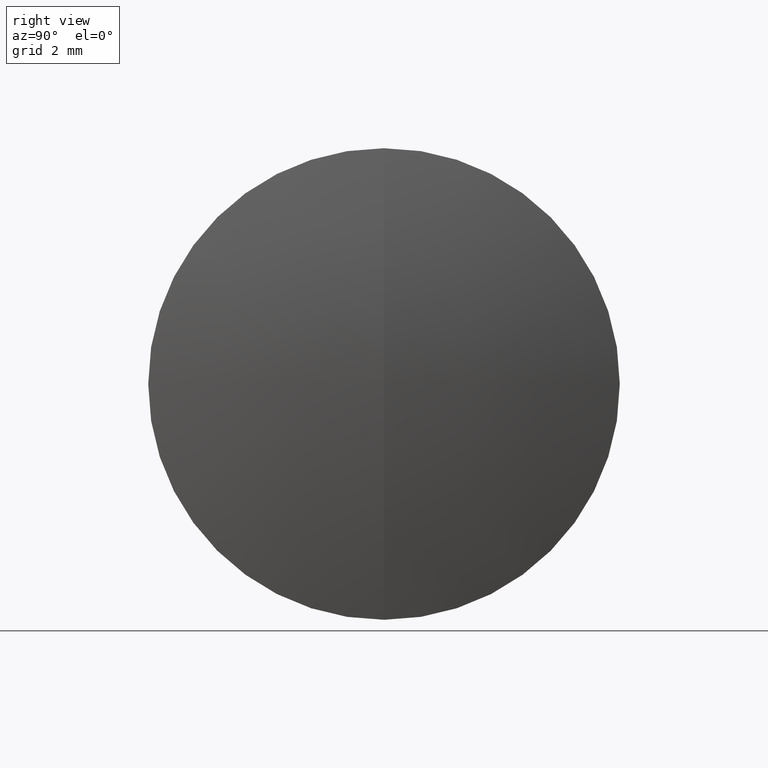
[diagram: clean part render]
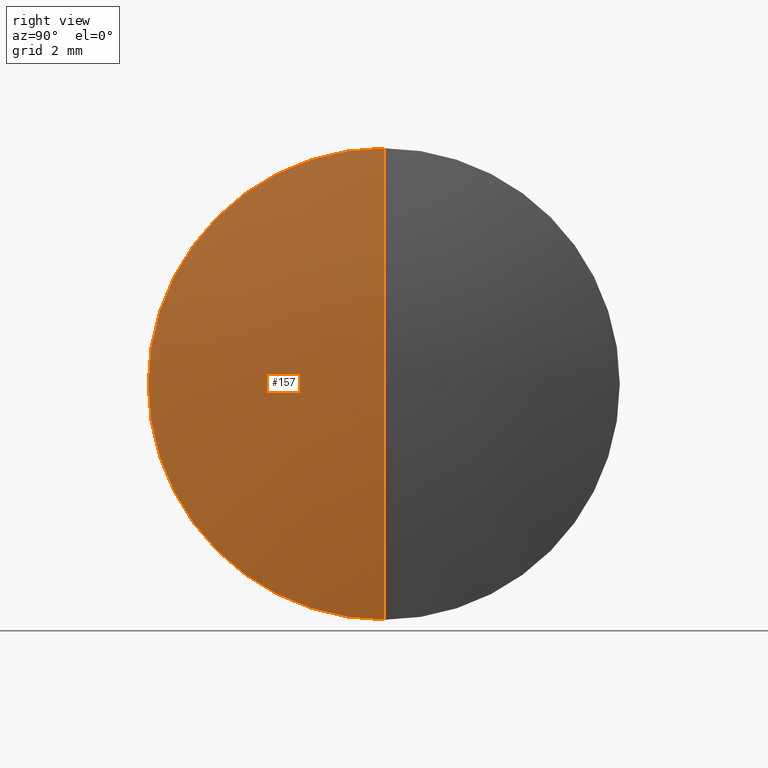
[diagram: same view with one face highlighted and labeled with its STEP entity id]
A machine part, right view. The second image highlights one B-rep face of the part: STEP entity #157.
In plain terms, the highlighted spherical surface has radius 23.586 mm.
Its self-contained STEP definition (entity closure, byte-faithful):
#15 = EDGE_LOOP ( 'NONE', ( #143, #118, #308 ) ) ;
#23 = CARTESIAN_POINT ( 'NONE',  ( -18.99342932123091600, 0.0000000000000000000, 0.0000000000000000000 ) ) ;
#44 = DIRECTION ( 'NONE',  ( 0.0000000000000000000, -1.224646799147353200E-016, 1.000000000000000000 ) ) ;
#81 = CARTESIAN_POINT ( 'NONE',  ( 4.592570678769083000, 0.0000000000000000000, 1.444225970234473700E-015 ) ) ;
#99 = DIRECTION ( 'NONE',  ( -1.000000000000000000, -0.0000000000000000000, -0.0000000000000000000 ) ) ;
#115 = CIRCLE ( 'NONE', #198, 23.58599999999999900 ) ;
#117 = CIRCLE ( 'NONE', #254, 23.58599999999999900 ) ;
#118 = ORIENTED_EDGE ( 'NONE', *, *, #345, .T. ) ;
#123 = SPHERICAL_SURFACE ( 'NONE', #281, 23.58599999999999900 ) ;
#127 = CARTESIAN_POINT ( 'NONE',  ( 4.056503346783539000, 0.0000000000000000000, 4.999999999999997300 ) ) ;
#143 = ORIENTED_EDGE ( 'NONE', *, *, #237, .F. ) ;
#148 = CARTESIAN_POINT ( 'NONE',  ( 4.056503346783539000, 6.123233995736764300E-016, -4.999999999999997300 ) ) ;
#152 = CARTESIAN_POINT ( 'NONE',  ( -18.99342932123091600, 0.0000000000000000000, 0.0000000000000000000 ) ) ;
#157 = ADVANCED_FACE ( 'NONE', ( #333 ), #123, .T. ) ;
#158 = CARTESIAN_POINT ( 'NONE',  ( -18.99342932123091600, 0.0000000000000000000, 0.0000000000000000000 ) ) ;
#179 = DIRECTION ( 'NONE',  ( 0.0000000000000000000, 0.0000000000000000000, -1.000000000000000000 ) ) ;
#197 = DIRECTION ( 'NONE',  ( -0.0000000000000000000, 1.000000000000000000, 1.224646799147353200E-016 ) ) ;
#198 = AXIS2_PLACEMENT_3D ( 'NONE', #152, #347, #179 ) ;
#209 = DIRECTION ( 'NONE',  ( 0.0000000000000000000, 0.0000000000000000000, 1.000000000000000000 ) ) ;
#229 = VERTEX_POINT ( 'NONE', #81 ) ;
#231 = AXIS2_PLACEMENT_3D ( 'NONE', #260, #99, #288 ) ;
#237 = EDGE_CURVE ( 'NONE', #229, #310, #117, .T. ) ;
#254 = AXIS2_PLACEMENT_3D ( 'NONE', #23, #197, #44 ) ;
#260 = CARTESIAN_POINT ( 'NONE',  ( 4.056503346783539000, 0.0000000000000000000, 0.0000000000000000000 ) ) ;
#273 = DIRECTION ( 'NONE',  ( 0.0000000000000000000, 1.000000000000000000, 0.0000000000000000000 ) ) ;
#277 = EDGE_CURVE ( 'NONE', #310, #340, #335, .T. ) ;
#281 = AXIS2_PLACEMENT_3D ( 'NONE', #158, #273, #209 ) ;
#288 = DIRECTION ( 'NONE',  ( 0.0000000000000000000, 0.0000000000000000000, 1.000000000000000000 ) ) ;
#308 = ORIENTED_EDGE ( 'NONE', *, *, #277, .F. ) ;
#310 = VERTEX_POINT ( 'NONE', #148 ) ;
#333 = FACE_OUTER_BOUND ( 'NONE', #15, .T. ) ;
#335 = CIRCLE ( 'NONE', #231, 4.999999999999997300 ) ;
#340 = VERTEX_POINT ( 'NONE', #127 ) ;
#345 = EDGE_CURVE ( 'NONE', #229, #340, #115, .T. ) ;
#347 = DIRECTION ( 'NONE',  ( 0.0000000000000000000, -1.000000000000000000, 0.0000000000000000000 ) ) ;